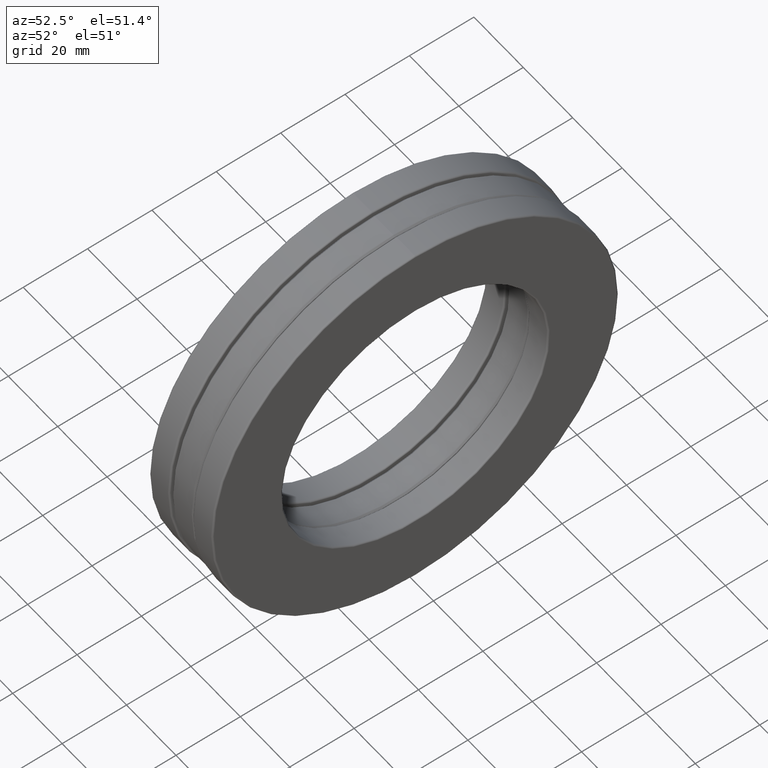
[diagram: clean part render]
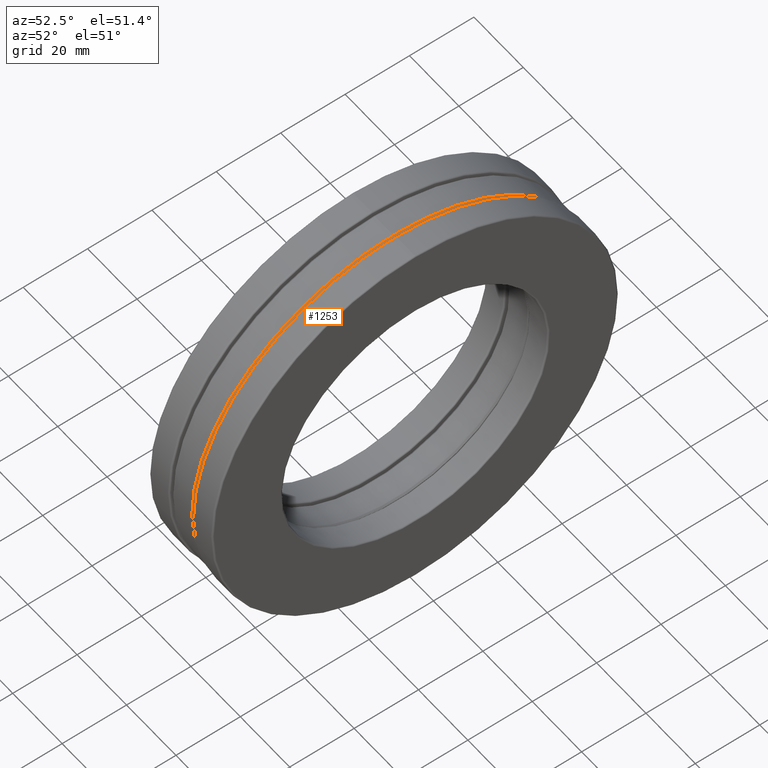
[diagram: same view with one face highlighted and labeled with its STEP entity id]
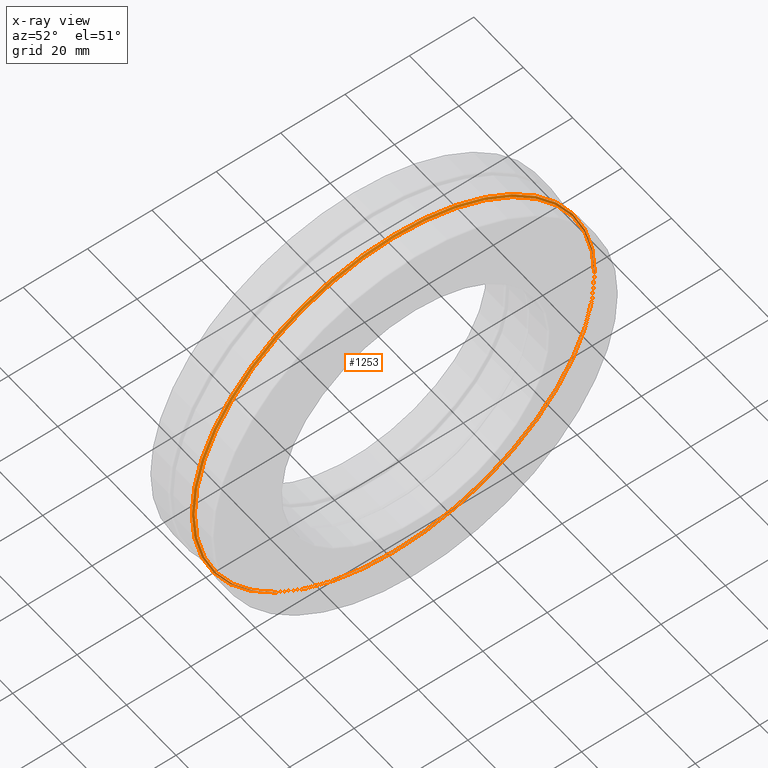
[diagram: x-ray of the same camera — body ghosted, the highlighted face saturated]
A machine part, auxiliary view. The second image highlights one B-rep face of the part: STEP entity #1253.
The next image is the same camera in x-ray: the body ghosted, the highlighted face saturated — about 8% of this face is hidden behind the body in this view.
In plain terms, the highlighted conical surface has half-angle 45 deg.
Its self-contained STEP definition (entity closure, byte-faithful):
#52 = ORIENTED_EDGE ( 'NONE', *, *, #768, .T. ) ;
#92 = VERTEX_POINT ( 'NONE', #356 ) ;
#118 = CARTESIAN_POINT ( 'NONE',  ( 0.1475000000000000800, 0.0000000000000000000, 0.0000000000000000000 ) ) ;
#155 = AXIS2_PLACEMENT_3D ( 'NONE', #306, #1442, #314 ) ;
#205 = CIRCLE ( 'NONE', #1364, 2.444374999999999500 ) ;
#228 = DIRECTION ( 'NONE',  ( 0.0000000000000000000, 0.0000000000000000000, 1.000000000000000000 ) ) ;
#306 = CARTESIAN_POINT ( 'NONE',  ( 0.1475000000000000800, 0.0000000000000000000, 0.0000000000000000000 ) ) ;
#314 = DIRECTION ( 'NONE',  ( 0.0000000000000000000, 0.0000000000000000000, 1.000000000000000000 ) ) ;
#327 = AXIS2_PLACEMENT_3D ( 'NONE', #118, #442, #574 ) ;
#356 = CARTESIAN_POINT ( 'NONE',  ( 0.1675000000000000100, 0.0000000000000000000, 2.444374999999999500 ) ) ;
#442 = DIRECTION ( 'NONE',  ( -1.000000000000000000, -0.0000000000000000000, -0.0000000000000000000 ) ) ;
#492 = ORIENTED_EDGE ( 'NONE', *, *, #776, .F. ) ;
#499 = FACE_BOUND ( 'NONE', #794, .T. ) ;
#574 = DIRECTION ( 'NONE',  ( 0.0000000000000000000, 0.0000000000000000000, 1.000000000000000000 ) ) ;
#672 = DIRECTION ( 'NONE',  ( -1.000000000000000000, -0.0000000000000000000, -0.0000000000000000000 ) ) ;
#768 = EDGE_CURVE ( 'NONE', #92, #92, #205, .T. ) ;
#776 = EDGE_CURVE ( 'NONE', #1372, #1372, #840, .T. ) ;
#794 = EDGE_LOOP ( 'NONE', ( #52 ) ) ;
#840 = CIRCLE ( 'NONE', #327, 2.464374999999999500 ) ;
#902 = CARTESIAN_POINT ( 'NONE',  ( 0.1675000000000000100, 0.0000000000000000000, 0.0000000000000000000 ) ) ;
#936 = CARTESIAN_POINT ( 'NONE',  ( 0.1475000000000000800, 0.0000000000000000000, 2.464374999999999500 ) ) ;
#1013 = EDGE_LOOP ( 'NONE', ( #492 ) ) ;
#1199 = FACE_OUTER_BOUND ( 'NONE', #1013, .T. ) ;
#1253 = ADVANCED_FACE ( 'NONE', ( #499, #1199 ), #1376, .T. ) ;
#1364 = AXIS2_PLACEMENT_3D ( 'NONE', #902, #672, #228 ) ;
#1372 = VERTEX_POINT ( 'NONE', #936 ) ;
#1376 = CONICAL_SURFACE ( 'NONE', #155, 2.464374999999999500, 0.7853981633974508300 ) ;
#1442 = DIRECTION ( 'NONE',  ( -1.000000000000000000, -0.0000000000000000000, -0.0000000000000000000 ) ) ;